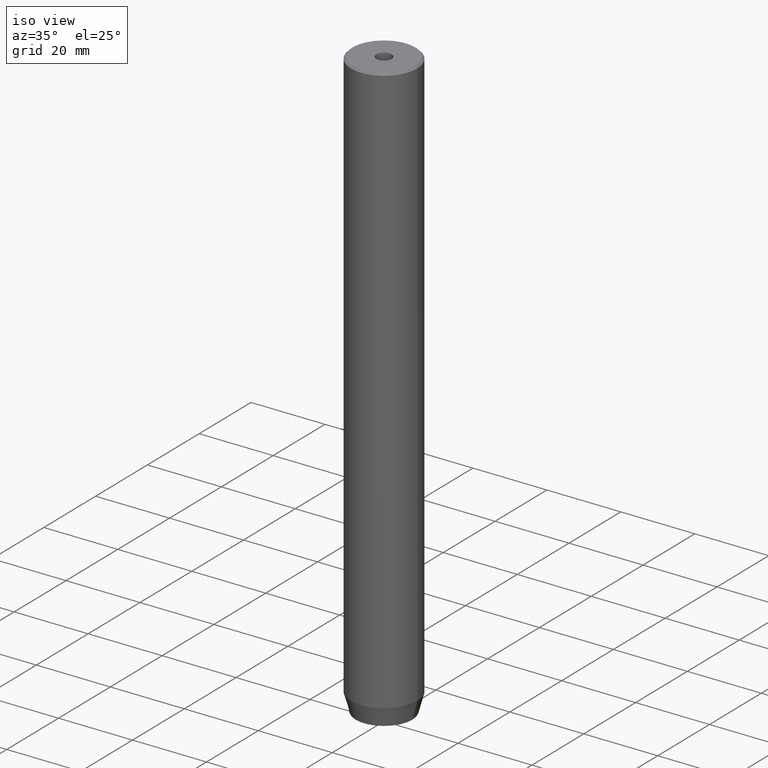
[diagram: clean part render]
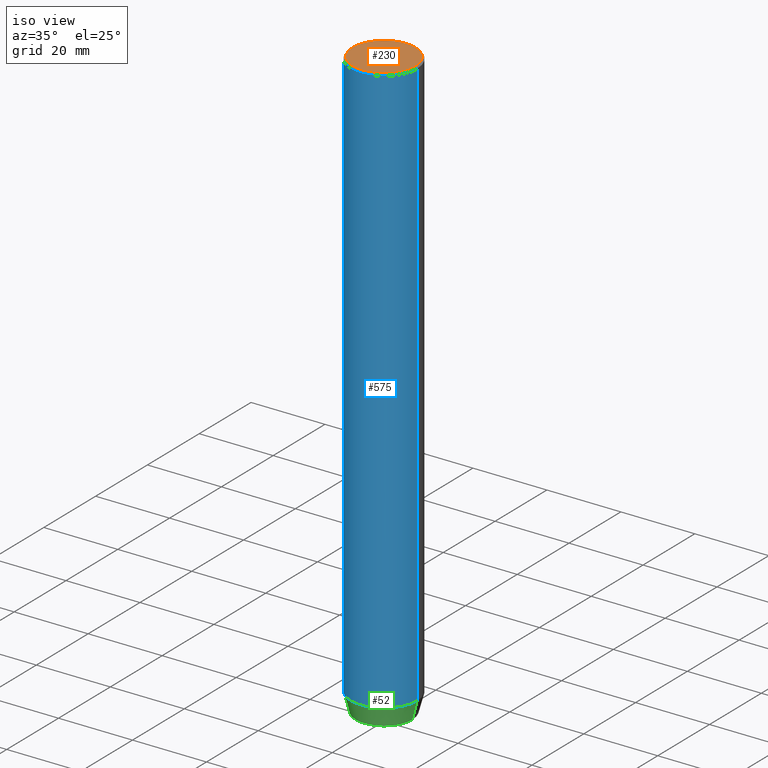
[diagram: same view with three faces highlighted in distinct colors, each labeled with its STEP entity id]
A machine part, iso view with three faces highlighted in distinct colors.
Their STEP definitions:

[orange] entity #230 — the highlighted planar face has unit normal (0, -0, 1).
#24 = AXIS2_PLACEMENT_3D ( 'NONE', #84, #361, #31 ) ;
#27 = EDGE_CURVE ( 'NONE', #77, #346, #327, .T. ) ;
#29 = DIRECTION ( 'NONE',  ( 0.000000000000000000, -0.000000000000000000, 1.000000000000000000 ) ) ;
#30 = VERTEX_POINT ( 'NONE', #149 ) ;
#31 = DIRECTION ( 'NONE',  ( 1.000000000000000000, 0.000000000000000000, 0.000000000000000000 ) ) ;
#36 = VERTEX_POINT ( 'NONE', #187 ) ;
#56 = CARTESIAN_POINT ( 'NONE',  ( 0.000000000000000000, 0.000000000000000000, -1.990051048614449116E-16 ) ) ;
#77 = VERTEX_POINT ( 'NONE', #412 ) ;
#84 = CARTESIAN_POINT ( 'NONE',  ( 0.000000000000000000, 0.000000000000000000, 0.000000000000000000 ) ) ;
#138 = AXIS2_PLACEMENT_3D ( 'NONE', #553, #29, #526 ) ;
#149 = CARTESIAN_POINT ( 'NONE',  ( 8.499999999999966249, 1.071565949253931955E-15, 0.000000000000000000 ) ) ;
#187 = CARTESIAN_POINT ( 'NONE',  ( -8.499999999999966249, 0.000000000000000000, 0.000000000000000000 ) ) ;
#189 = CIRCLE ( 'NONE', #24, 8.499999999999966249 ) ;
#200 = FACE_OUTER_BOUND ( 'NONE', #531, .T. ) ;
#228 = DIRECTION ( 'NONE',  ( 1.000000000000000000, 0.000000000000000000, 0.000000000000000000 ) ) ;
#230 = ADVANCED_FACE ( 'NONE', ( #253, #200 ), #347, .T. ) ;
#234 = AXIS2_PLACEMENT_3D ( 'NONE', #404, #496, #228 ) ;
#253 = FACE_BOUND ( 'NONE', #562, .T. ) ;
#279 = CARTESIAN_POINT ( 'NONE',  ( 0.000000000000000000, 0.000000000000000000, 0.000000000000000000 ) ) ;
#281 = DIRECTION ( 'NONE',  ( 1.000000000000000000, 0.000000000000000000, 0.000000000000000000 ) ) ;
#314 = ORIENTED_EDGE ( 'NONE', *, *, #371, .T. ) ;
#316 = ORIENTED_EDGE ( 'NONE', *, *, #519, .T. ) ;
#327 = CIRCLE ( 'NONE', #483, 2.099999999999998757 ) ;
#346 = VERTEX_POINT ( 'NONE', #442 ) ;
#347 = PLANE ( 'NONE',  #138 ) ;
#350 = CIRCLE ( 'NONE', #234, 2.099999999999998757 ) ;
#351 = ORIENTED_EDGE ( 'NONE', *, *, #458, .F. ) ;
#361 = DIRECTION ( 'NONE',  ( -0.000000000000000000, -0.000000000000000000, 1.000000000000000000 ) ) ;
#366 = DIRECTION ( 'NONE',  ( -0.000000000000000000, -0.000000000000000000, 1.000000000000000000 ) ) ;
#371 = EDGE_CURVE ( 'NONE', #30, #36, #189, .T. ) ;
#375 = DIRECTION ( 'NONE',  ( 1.000000000000000000, 0.000000000000000000, 0.000000000000000000 ) ) ;
#404 = CARTESIAN_POINT ( 'NONE',  ( 0.000000000000000000, 0.000000000000000000, -1.990051048614449116E-16 ) ) ;
#412 = CARTESIAN_POINT ( 'NONE',  ( 2.099999999999998757, 0.000000000000000000, -1.990051048614449116E-16 ) ) ;
#415 = CIRCLE ( 'NONE', #559, 8.499999999999966249 ) ;
#442 = CARTESIAN_POINT ( 'NONE',  ( -2.099999999999998757, 2.571758278209440478E-16, -1.990051048614449116E-16 ) ) ;
#458 = EDGE_CURVE ( 'NONE', #346, #77, #350, .T. ) ;
#466 = DIRECTION ( 'NONE',  ( -0.000000000000000000, -0.000000000000000000, 1.000000000000000000 ) ) ;
#483 = AXIS2_PLACEMENT_3D ( 'NONE', #56, #466, #375 ) ;
#496 = DIRECTION ( 'NONE',  ( -0.000000000000000000, -0.000000000000000000, 1.000000000000000000 ) ) ;
#519 = EDGE_CURVE ( 'NONE', #36, #30, #415, .T. ) ;
#526 = DIRECTION ( 'NONE',  ( 1.000000000000000000, 0.000000000000000000, 0.000000000000000000 ) ) ;
#531 = EDGE_LOOP ( 'NONE', ( #316, #314 ) ) ;
#553 = CARTESIAN_POINT ( 'NONE',  ( 0.000000000000000000, 0.000000000000000000, 0.000000000000000000 ) ) ;
#558 = ORIENTED_EDGE ( 'NONE', *, *, #27, .F. ) ;
#559 = AXIS2_PLACEMENT_3D ( 'NONE', #279, #366, #281 ) ;
#562 = EDGE_LOOP ( 'NONE', ( #558, #351 ) ) ;

[blue] entity #575 — the highlighted cylindrical surface (partial cylindrical patch) has radius 9 mm, axis along (-0, -0, 1).
#2 = CARTESIAN_POINT ( 'NONE',  ( 9.000000000000000000, 0.000000000000000000, -0.5000000000000229816 ) ) ;
#4 = CARTESIAN_POINT ( 'NONE',  ( 9.000000000000000000, 0.000000000000000000, 0.000000000000000000 ) ) ;
#37 = CARTESIAN_POINT ( 'NONE',  ( 0.000000000000000000, 0.000000000000000000, -0.5000000000000229816 ) ) ;
#45 = DIRECTION ( 'NONE',  ( 1.000000000000000000, 0.000000000000000000, 0.000000000000000000 ) ) ;
#48 = DIRECTION ( 'NONE',  ( -0.000000000000000000, -0.000000000000000000, 1.000000000000000000 ) ) ;
#92 = CARTESIAN_POINT ( 'NONE',  ( 0.000000000000000000, 0.000000000000000000, -154.9999999999999716 ) ) ;
#94 = EDGE_CURVE ( 'NONE', #163, #128, #95, .T. ) ;
#95 = LINE ( 'NONE', #512, #194 ) ;
#97 = CARTESIAN_POINT ( 'NONE',  ( 9.000000000000000000, 0.000000000000000000, -154.9999999999999716 ) ) ;
#101 = CYLINDRICAL_SURFACE ( 'NONE', #439, 9.000000000000000000 ) ;
#102 = DIRECTION ( 'NONE',  ( -0.000000000000000000, -0.000000000000000000, 1.000000000000000000 ) ) ;
#104 = EDGE_CURVE ( 'NONE', #163, #577, #424, .T. ) ;
#128 = VERTEX_POINT ( 'NONE', #546 ) ;
#136 = VERTEX_POINT ( 'NONE', #2 ) ;
#163 = VERTEX_POINT ( 'NONE', #427 ) ;
#167 = AXIS2_PLACEMENT_3D ( 'NONE', #92, #48, #380 ) ;
#194 = VECTOR ( 'NONE', #102, 1000.000000000000000 ) ;
#221 = ORIENTED_EDGE ( 'NONE', *, *, #488, .T. ) ;
#222 = DIRECTION ( 'NONE',  ( 0.000000000000000000, 0.000000000000000000, -1.000000000000000000 ) ) ;
#232 = CARTESIAN_POINT ( 'NONE',  ( 0.000000000000000000, 0.000000000000000000, 0.000000000000000000 ) ) ;
#235 = DIRECTION ( 'NONE',  ( -0.000000000000000000, -0.000000000000000000, 1.000000000000000000 ) ) ;
#254 = VECTOR ( 'NONE', #235, 1000.000000000000000 ) ;
#317 = DIRECTION ( 'NONE',  ( -0.000000000000000000, -0.000000000000000000, 1.000000000000000000 ) ) ;
#329 = FACE_OUTER_BOUND ( 'NONE', #388, .T. ) ;
#380 = DIRECTION ( 'NONE',  ( 1.000000000000000000, 0.000000000000000000, 0.000000000000000000 ) ) ;
#388 = EDGE_LOOP ( 'NONE', ( #403, #480, #221, #521 ) ) ;
#402 = DIRECTION ( 'NONE',  ( 1.000000000000000000, 0.000000000000000000, 0.000000000000000000 ) ) ;
#403 = ORIENTED_EDGE ( 'NONE', *, *, #94, .F. ) ;
#424 = CIRCLE ( 'NONE', #167, 9.000000000000000000 ) ;
#427 = CARTESIAN_POINT ( 'NONE',  ( -9.000000000000000000, 1.102182119232617714E-15, -154.9999999999999716 ) ) ;
#439 = AXIS2_PLACEMENT_3D ( 'NONE', #232, #317, #45 ) ;
#479 = EDGE_CURVE ( 'NONE', #136, #128, #511, .T. ) ;
#480 = ORIENTED_EDGE ( 'NONE', *, *, #104, .T. ) ;
#488 = EDGE_CURVE ( 'NONE', #577, #136, #576, .T. ) ;
#511 = CIRCLE ( 'NONE', #570, 9.000000000000000000 ) ;
#512 = CARTESIAN_POINT ( 'NONE',  ( -9.000000000000000000, 1.102182119232617714E-15, 0.000000000000000000 ) ) ;
#521 = ORIENTED_EDGE ( 'NONE', *, *, #479, .T. ) ;
#546 = CARTESIAN_POINT ( 'NONE',  ( -9.000000000000000000, 1.102182119232617714E-15, -0.5000000000000229816 ) ) ;
#570 = AXIS2_PLACEMENT_3D ( 'NONE', #37, #222, #402 ) ;
#575 = ADVANCED_FACE ( 'NONE', ( #329 ), #101, .T. ) ;
#576 = LINE ( 'NONE', #4, #254 ) ;
#577 = VERTEX_POINT ( 'NONE', #97 ) ;

[green] entity #52 — the highlighted conical surface has half-angle 15 deg.
#9 = DIRECTION ( 'NONE',  ( 1.000000000000000000, 0.000000000000000000, 0.000000000000000000 ) ) ;
#25 = CARTESIAN_POINT ( 'NONE',  ( -9.000000000000000000, 1.102182119232617714E-15, -154.9999999999999716 ) ) ;
#48 = DIRECTION ( 'NONE',  ( -0.000000000000000000, -0.000000000000000000, 1.000000000000000000 ) ) ;
#49 = CARTESIAN_POINT ( 'NONE',  ( -7.660254037844373087, 1.020146339021393680E-15, -160.0000000000000000 ) ) ;
#52 = ADVANCED_FACE ( 'NONE', ( #238 ), #86, .T. ) ;
#74 = ORIENTED_EDGE ( 'NONE', *, *, #275, .T. ) ;
#86 = CONICAL_SURFACE ( 'NONE', #508, 9.000000000000000000, 0.2617993877991501295 ) ;
#92 = CARTESIAN_POINT ( 'NONE',  ( 0.000000000000000000, 0.000000000000000000, -154.9999999999999716 ) ) ;
#97 = CARTESIAN_POINT ( 'NONE',  ( 9.000000000000000000, 0.000000000000000000, -154.9999999999999716 ) ) ;
#104 = EDGE_CURVE ( 'NONE', #163, #577, #424, .T. ) ;
#125 = VERTEX_POINT ( 'NONE', #321 ) ;
#163 = VERTEX_POINT ( 'NONE', #427 ) ;
#167 = AXIS2_PLACEMENT_3D ( 'NONE', #92, #48, #380 ) ;
#205 = CARTESIAN_POINT ( 'NONE',  ( 9.000000000000000000, 0.000000000000000000, -154.9999999999999716 ) ) ;
#238 = FACE_OUTER_BOUND ( 'NONE', #342, .T. ) ;
#275 = EDGE_CURVE ( 'NONE', #125, #577, #557, .T. ) ;
#282 = CARTESIAN_POINT ( 'NONE',  ( 0.000000000000000000, 0.000000000000000000, -154.9999999999999716 ) ) ;
#283 = VECTOR ( 'NONE', #334, 1000.000000000000000 ) ;
#289 = EDGE_CURVE ( 'NONE', #517, #125, #293, .T. ) ;
#293 = CIRCLE ( 'NONE', #447, 7.660254037844373087 ) ;
#299 = LINE ( 'NONE', #25, #494 ) ;
#302 = DIRECTION ( 'NONE',  ( 1.000000000000000000, 0.000000000000000000, 0.000000000000000000 ) ) ;
#309 = ORIENTED_EDGE ( 'NONE', *, *, #104, .F. ) ;
#321 = CARTESIAN_POINT ( 'NONE',  ( 7.660254037844373087, 0.000000000000000000, -160.0000000000000000 ) ) ;
#325 = EDGE_CURVE ( 'NONE', #517, #163, #299, .T. ) ;
#330 = DIRECTION ( 'NONE',  ( -0.000000000000000000, -0.000000000000000000, 1.000000000000000000 ) ) ;
#334 = DIRECTION ( 'NONE',  ( 0.2588190451025214056, 0.000000000000000000, 0.9659258262890680902 ) ) ;
#337 = CARTESIAN_POINT ( 'NONE',  ( 0.000000000000000000, 0.000000000000000000, -160.0000000000000000 ) ) ;
#342 = EDGE_LOOP ( 'NONE', ( #392, #385, #74, #309 ) ) ;
#380 = DIRECTION ( 'NONE',  ( 1.000000000000000000, 0.000000000000000000, 0.000000000000000000 ) ) ;
#385 = ORIENTED_EDGE ( 'NONE', *, *, #289, .T. ) ;
#392 = ORIENTED_EDGE ( 'NONE', *, *, #325, .F. ) ;
#424 = CIRCLE ( 'NONE', #167, 9.000000000000000000 ) ;
#427 = CARTESIAN_POINT ( 'NONE',  ( -9.000000000000000000, 1.102182119232617714E-15, -154.9999999999999716 ) ) ;
#447 = AXIS2_PLACEMENT_3D ( 'NONE', #337, #561, #302 ) ;
#494 = VECTOR ( 'NONE', #499, 1000.000000000000000 ) ;
#499 = DIRECTION ( 'NONE',  ( -0.2588190451025214056, 3.169619151431772953E-17, 0.9659258262890680902 ) ) ;
#508 = AXIS2_PLACEMENT_3D ( 'NONE', #282, #330, #9 ) ;
#517 = VERTEX_POINT ( 'NONE', #49 ) ;
#557 = LINE ( 'NONE', #205, #283 ) ;
#561 = DIRECTION ( 'NONE',  ( -0.000000000000000000, -0.000000000000000000, 1.000000000000000000 ) ) ;
#577 = VERTEX_POINT ( 'NONE', #97 ) ;